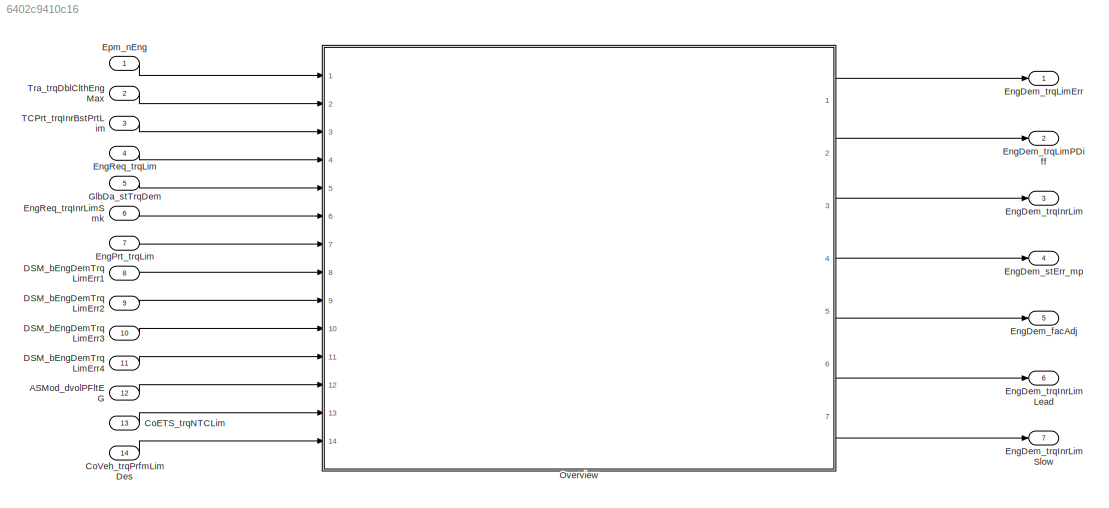
MODEL slx_6402c9410c16
KIND model
CONFIG AbsTol = auto
CONFIG EnableMultiTasking = off
CONFIG FixedStep = auto
CONFIG MaxStep = auto
CONFIG MinStep = auto
CONFIG RelTol = 1e-3
CONFIG SampleTimeConstraint = Unconstrained
CONFIG Solver = VariableStepAuto
CONFIG SolverName = VariableStepAuto
CONFIG StartTime = 0.0
CONFIG StopTime = 10.0
BLOCK [Inport] ASMod_dvolPFltEG
  IconDisplay = Port number
  Port = 12
BLOCK [Inport] CoETS_trqNTCLim
  IconDisplay = Port number
  Port = 13
BLOCK [Inport] CoVeh_trqPrfmLimDes
  IconDisplay = Port number
  Port = 14
BLOCK [Inport] DSM_bEngDemTrqLimErr1
  IconDisplay = Port number
  Port = 8
BLOCK [Inport] DSM_bEngDemTrqLimErr2
  IconDisplay = Port number
  Port = 9
BLOCK [Inport] DSM_bEngDemTrqLimErr3
  IconDisplay = Port number
  Port = 10
BLOCK [Inport] DSM_bEngDemTrqLimErr4
  IconDisplay = Port number
  Port = 11
BLOCK [Outport] EngDem_facAdj
  IconDisplay = Port number
  Port = 5
BLOCK [Outport] EngDem_stErr_mp
  IconDisplay = Port number
  Port = 4
BLOCK [Outport] EngDem_trqInrLim
  IconDisplay = Port number
  Port = 3
BLOCK [Outport] EngDem_trqInrLimLead
  IconDisplay = Port number
  Port = 6
BLOCK [Outport] EngDem_trqInrLimSlow
  IconDisplay = Port number
  Port = 7
BLOCK [Outport] EngDem_trqLimErr
  IconDisplay = Port number
BLOCK [Outport] EngDem_trqLimPDiff
  IconDisplay = Port number
  Port = 2
BLOCK [Inport] EngPrt_trqLim
  IconDisplay = Port number
  Port = 7
BLOCK [Inport] EngReq_trqInrLimSmk
  IconDisplay = Port number
  Port = 6
BLOCK [Inport] EngReq_trqLim
  IconDisplay = Port number
  Port = 4
BLOCK [Inport] Epm_nEng
  IconDisplay = Port number
BLOCK [Inport] GlbDa_stTrqDem
  IconDisplay = Port number
  Port = 5
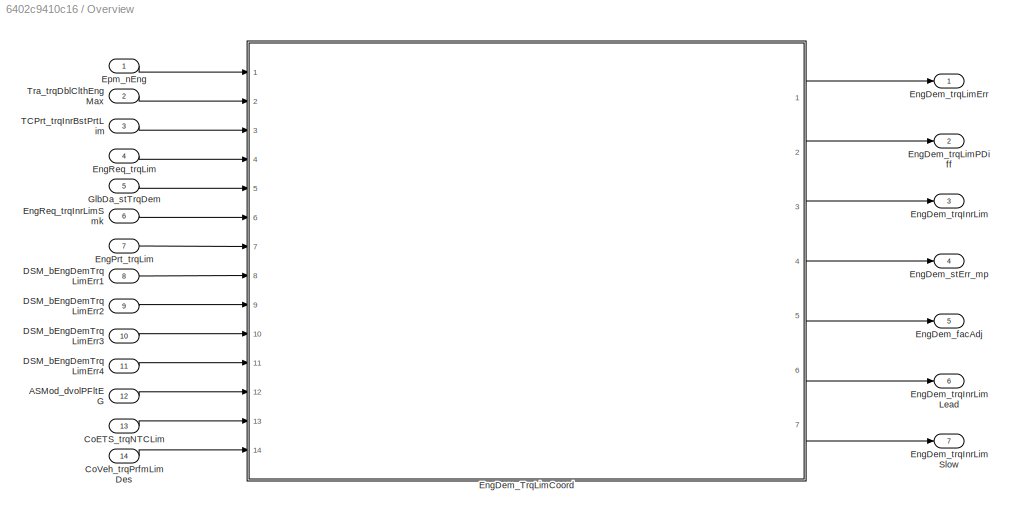
BLOCK [SubSystem] Overview
  Ports = [14, 7]
  RequestExecContextInheritance = off
BLOCK [Inport] Overview/ASMod_dvolPFltEG
  IconDisplay = Port number
  Port = 12
BLOCK [Inport] Overview/CoETS_trqNTCLim
  IconDisplay = Port number
  Port = 13
BLOCK [Inport] Overview/CoVeh_trqPrfmLimDes
  IconDisplay = Port number
  Port = 14
BLOCK [Inport] Overview/DSM_bEngDemTrqLimErr1
  IconDisplay = Port number
  Port = 8
BLOCK [Inport] Overview/DSM_bEngDemTrqLimErr2
  IconDisplay = Port number
  Port = 9
BLOCK [Inport] Overview/DSM_bEngDemTrqLimErr3
  IconDisplay = Port number
  Port = 10
BLOCK [Inport] Overview/DSM_bEngDemTrqLimErr4
  IconDisplay = Port number
  Port = 11
BLOCK [ModelReference] Overview/EngDem_TrqLimCoord
  ModelNameDialog = EngDem_TrqLimCoord
  ModelReferenceVersion = 1.53
  Ports = [14, 7]
BLOCK [Outport] Overview/EngDem_facAdj
  IconDisplay = Port number
  Port = 5
BLOCK [Outport] Overview/EngDem_stErr_mp
  IconDisplay = Port number
  Port = 4
BLOCK [Outport] Overview/EngDem_trqInrLim
  IconDisplay = Port number
  Port = 3
BLOCK [Outport] Overview/EngDem_trqInrLimLead
  IconDisplay = Port number
  Port = 6
BLOCK [Outport] Overview/EngDem_trqInrLimSlow
  IconDisplay = Port number
  Port = 7
BLOCK [Outport] Overview/EngDem_trqLimErr
  IconDisplay = Port number
BLOCK [Outport] Overview/EngDem_trqLimPDiff
  IconDisplay = Port number
  Port = 2
BLOCK [Inport] Overview/EngPrt_trqLim
  IconDisplay = Port number
  Port = 7
BLOCK [Inport] Overview/EngReq_trqInrLimSmk
  IconDisplay = Port number
  Port = 6
BLOCK [Inport] Overview/EngReq_trqLim
  IconDisplay = Port number
  Port = 4
BLOCK [Inport] Overview/Epm_nEng
  IconDisplay = Port number
BLOCK [Inport] Overview/GlbDa_stTrqDem
  IconDisplay = Port number
  Port = 5
BLOCK [Inport] Overview/TCPrt_trqInrBstPrtLim
  IconDisplay = Port number
  Port = 3
BLOCK [Inport] Overview/Tra_trqDblClthEngMax
  IconDisplay = Port number
  Port = 2
BLOCK [Inport] TCPrt_trqInrBstPrtLim
  IconDisplay = Port number
  Port = 3
BLOCK [Inport] Tra_trqDblClthEngMax
  IconDisplay = Port number
  Port = 2
LINE ASMod_dvolPFltEG:1 -> Overview:12
LINE CoETS_trqNTCLim:1 -> Overview:13
LINE CoVeh_trqPrfmLimDes:1 -> Overview:14
LINE DSM_bEngDemTrqLimErr1:1 -> Overview:8
LINE DSM_bEngDemTrqLimErr2:1 -> Overview:9
LINE DSM_bEngDemTrqLimErr3:1 -> Overview:10
LINE DSM_bEngDemTrqLimErr4:1 -> Overview:11
LINE EngPrt_trqLim:1 -> Overview:7
LINE EngReq_trqInrLimSmk:1 -> Overview:6
LINE EngReq_trqLim:1 -> Overview:4
LINE Epm_nEng:1 -> Overview:1
LINE GlbDa_stTrqDem:1 -> Overview:5
LINE Overview/ASMod_dvolPFltEG:1 -> Overview/EngDem_TrqLimCoord:12
LINE Overview/CoETS_trqNTCLim:1 -> Overview/EngDem_TrqLimCoord:13
LINE Overview/CoVeh_trqPrfmLimDes:1 -> Overview/EngDem_TrqLimCoord:14
LINE Overview/DSM_bEngDemTrqLimErr1:1 -> Overview/EngDem_TrqLimCoord:8
LINE Overview/DSM_bEngDemTrqLimErr2:1 -> Overview/EngDem_TrqLimCoord:9
LINE Overview/DSM_bEngDemTrqLimErr3:1 -> Overview/EngDem_TrqLimCoord:10
LINE Overview/DSM_bEngDemTrqLimErr4:1 -> Overview/EngDem_TrqLimCoord:11
LINE Overview/EngDem_TrqLimCoord:1 -> Overview/EngDem_trqLimErr:1
LINE Overview/EngDem_TrqLimCoord:2 -> Overview/EngDem_trqLimPDiff:1
LINE Overview/EngDem_TrqLimCoord:3 -> Overview/EngDem_trqInrLim:1
LINE Overview/EngDem_TrqLimCoord:4 -> Overview/EngDem_stErr_mp:1
LINE Overview/EngDem_TrqLimCoord:5 -> Overview/EngDem_facAdj:1
LINE Overview/EngDem_TrqLimCoord:6 -> Overview/EngDem_trqInrLimLead:1
LINE Overview/EngDem_TrqLimCoord:7 -> Overview/EngDem_trqInrLimSlow:1
LINE Overview/EngPrt_trqLim:1 -> Overview/EngDem_TrqLimCoord:7
LINE Overview/EngReq_trqInrLimSmk:1 -> Overview/EngDem_TrqLimCoord:6
LINE Overview/EngReq_trqLim:1 -> Overview/EngDem_TrqLimCoord:4
LINE Overview/Epm_nEng:1 -> Overview/EngDem_TrqLimCoord:1
LINE Overview/GlbDa_stTrqDem:1 -> Overview/EngDem_TrqLimCoord:5
LINE Overview/TCPrt_trqInrBstPrtLim:1 -> Overview/EngDem_TrqLimCoord:3
LINE Overview/Tra_trqDblClthEngMax:1 -> Overview/EngDem_TrqLimCoord:2
LINE Overview:1 -> EngDem_trqLimErr:1
LINE Overview:2 -> EngDem_trqLimPDiff:1
LINE Overview:3 -> EngDem_trqInrLim:1
LINE Overview:4 -> EngDem_stErr_mp:1
LINE Overview:5 -> EngDem_facAdj:1
LINE Overview:6 -> EngDem_trqInrLimLead:1
LINE Overview:7 -> EngDem_trqInrLimSlow:1
LINE TCPrt_trqInrBstPrtLim:1 -> Overview:3
LINE Tra_trqDblClthEngMax:1 -> Overview:2
